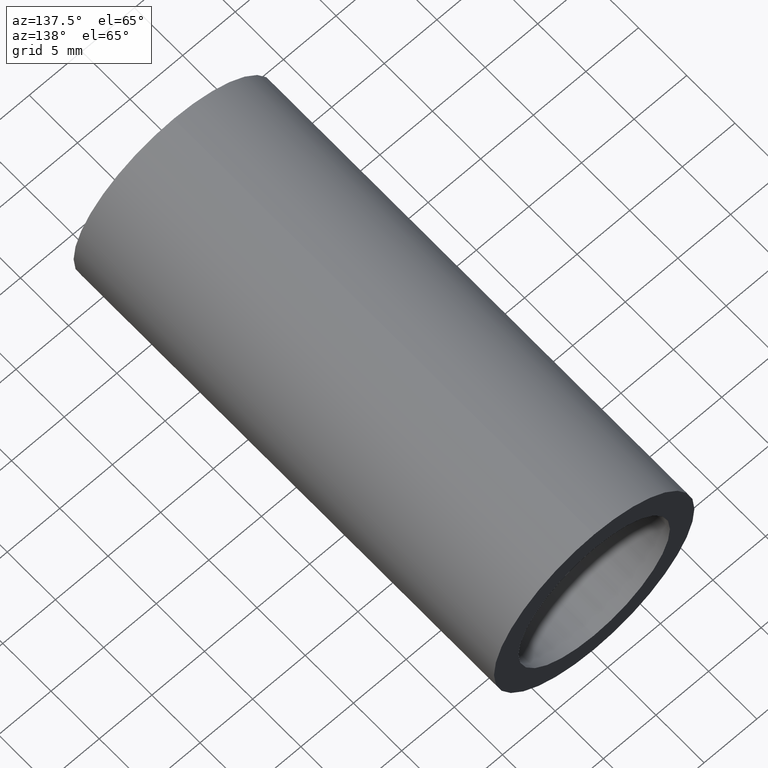
[diagram: clean part render]
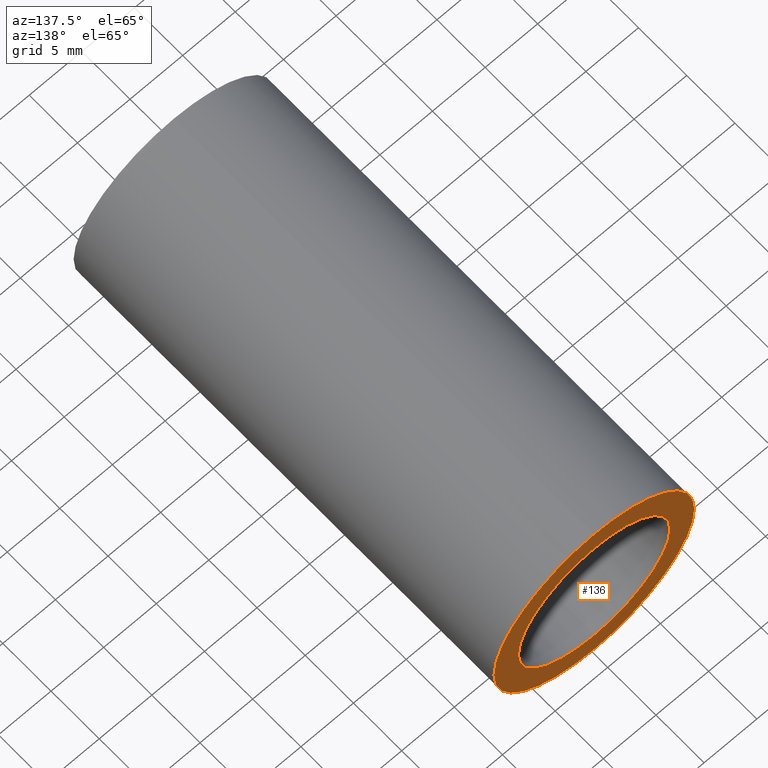
[diagram: same view with one face highlighted and labeled with its STEP entity id]
A machine part, auxiliary view. The second image highlights one B-rep face of the part: STEP entity #136.
In plain terms, the highlighted planar face has unit normal (0, -1, 0).
Its self-contained STEP definition (entity closure, byte-faithful):
#6 = VERTEX_POINT ( 'NONE', #369 ) ;
#11 = AXIS2_PLACEMENT_3D ( 'NONE', #404, #603, #166 ) ;
#23 = DIRECTION ( 'NONE',  ( 0.0000000000000000000, 0.0000000000000000000, 1.000000000000000000 ) ) ;
#58 = EDGE_LOOP ( 'NONE', ( #531, #511 ) ) ;
#92 = EDGE_CURVE ( 'NONE', #594, #320, #458, .T. ) ;
#95 = FACE_BOUND ( 'NONE', #58, .T. ) ;
#118 = CARTESIAN_POINT ( 'NONE',  ( 0.0000000000000000000, 43.59999999999998700, 9.525000000000019900 ) ) ;
#126 = AXIS2_PLACEMENT_3D ( 'NONE', #375, #152, #232 ) ;
#129 = CIRCLE ( 'NONE', #11, 7.200000000000012600 ) ;
#136 = ADVANCED_FACE ( 'NONE', ( #95, #590 ), #482, .F. ) ;
#152 = DIRECTION ( 'NONE',  ( 0.0000000000000000000, -1.000000000000000000, 0.0000000000000000000 ) ) ;
#166 = DIRECTION ( 'NONE',  ( 0.0000000000000000000, 0.0000000000000000000, 1.000000000000000000 ) ) ;
#195 = EDGE_CURVE ( 'NONE', #6, #615, #356, .T. ) ;
#197 = AXIS2_PLACEMENT_3D ( 'NONE', #355, #555, #23 ) ;
#216 = AXIS2_PLACEMENT_3D ( 'NONE', #490, #486, #298 ) ;
#232 = DIRECTION ( 'NONE',  ( 0.0000000000000000000, -0.0000000000000000000, -1.000000000000000000 ) ) ;
#257 = CIRCLE ( 'NONE', #197, 9.525000000000019900 ) ;
#283 = CARTESIAN_POINT ( 'NONE',  ( 8.817456953860959100E-016, 43.59999999999998700, -7.200000000000013500 ) ) ;
#287 = EDGE_CURVE ( 'NONE', #615, #6, #129, .T. ) ;
#298 = DIRECTION ( 'NONE',  ( 0.0000000000000000000, 0.0000000000000000000, 1.000000000000000000 ) ) ;
#320 = VERTEX_POINT ( 'NONE', #118 ) ;
#342 = EDGE_CURVE ( 'NONE', #320, #594, #257, .T. ) ;
#355 = CARTESIAN_POINT ( 'NONE',  ( 0.0000000000000000000, 43.59999999999998700, 0.0000000000000000000 ) ) ;
#356 = CIRCLE ( 'NONE', #216, 7.200000000000012600 ) ;
#369 = CARTESIAN_POINT ( 'NONE',  ( 0.0000000000000000000, 43.59999999999998700, 7.200000000000012600 ) ) ;
#375 = CARTESIAN_POINT ( 'NONE',  ( 7.200000000000012600, 43.59999999999998700, 0.0000000000000000000 ) ) ;
#378 = ORIENTED_EDGE ( 'NONE', *, *, #92, .T. ) ;
#394 = ORIENTED_EDGE ( 'NONE', *, *, #342, .T. ) ;
#404 = CARTESIAN_POINT ( 'NONE',  ( 0.0000000000000000000, 43.59999999999998700, 0.0000000000000000000 ) ) ;
#447 = EDGE_LOOP ( 'NONE', ( #394, #378 ) ) ;
#458 = CIRCLE ( 'NONE', #622, 9.525000000000019900 ) ;
#473 = CARTESIAN_POINT ( 'NONE',  ( 1.166476076187856400E-015, 43.59999999999998700, -9.525000000000019900 ) ) ;
#482 = PLANE ( 'NONE',  #126 ) ;
#486 = DIRECTION ( 'NONE',  ( -0.0000000000000000000, 1.000000000000000000, -0.0000000000000000000 ) ) ;
#490 = CARTESIAN_POINT ( 'NONE',  ( 0.0000000000000000000, 43.59999999999998700, 0.0000000000000000000 ) ) ;
#511 = ORIENTED_EDGE ( 'NONE', *, *, #287, .F. ) ;
#531 = ORIENTED_EDGE ( 'NONE', *, *, #195, .F. ) ;
#533 = CARTESIAN_POINT ( 'NONE',  ( 0.0000000000000000000, 43.59999999999998700, 0.0000000000000000000 ) ) ;
#555 = DIRECTION ( 'NONE',  ( -0.0000000000000000000, 1.000000000000000000, -0.0000000000000000000 ) ) ;
#580 = DIRECTION ( 'NONE',  ( 0.0000000000000000000, 0.0000000000000000000, 1.000000000000000000 ) ) ;
#590 = FACE_OUTER_BOUND ( 'NONE', #447, .T. ) ;
#594 = VERTEX_POINT ( 'NONE', #473 ) ;
#603 = DIRECTION ( 'NONE',  ( -0.0000000000000000000, 1.000000000000000000, -0.0000000000000000000 ) ) ;
#615 = VERTEX_POINT ( 'NONE', #283 ) ;
#620 = DIRECTION ( 'NONE',  ( -0.0000000000000000000, 1.000000000000000000, -0.0000000000000000000 ) ) ;
#622 = AXIS2_PLACEMENT_3D ( 'NONE', #533, #620, #580 ) ;